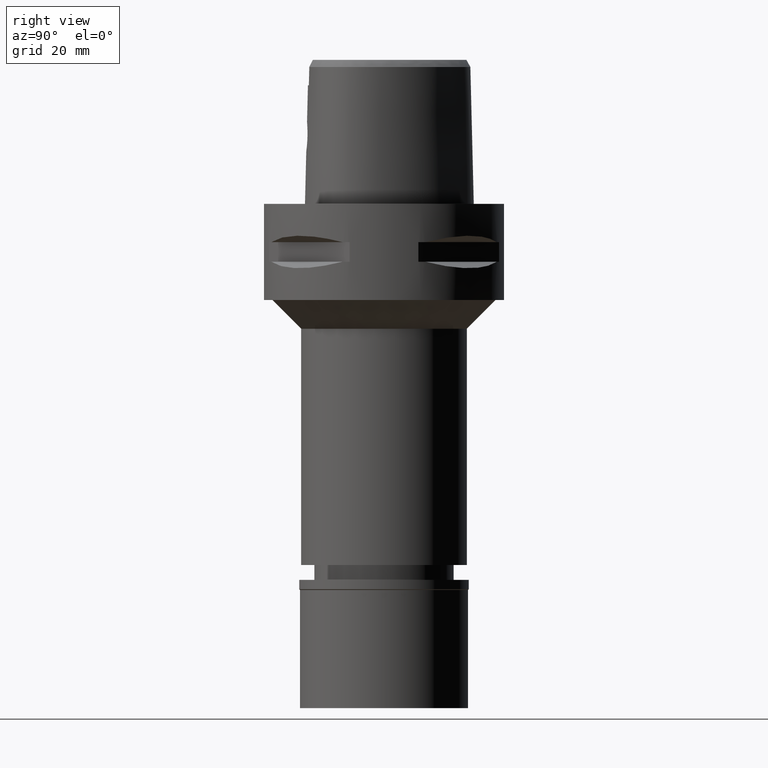
[diagram: clean part render]
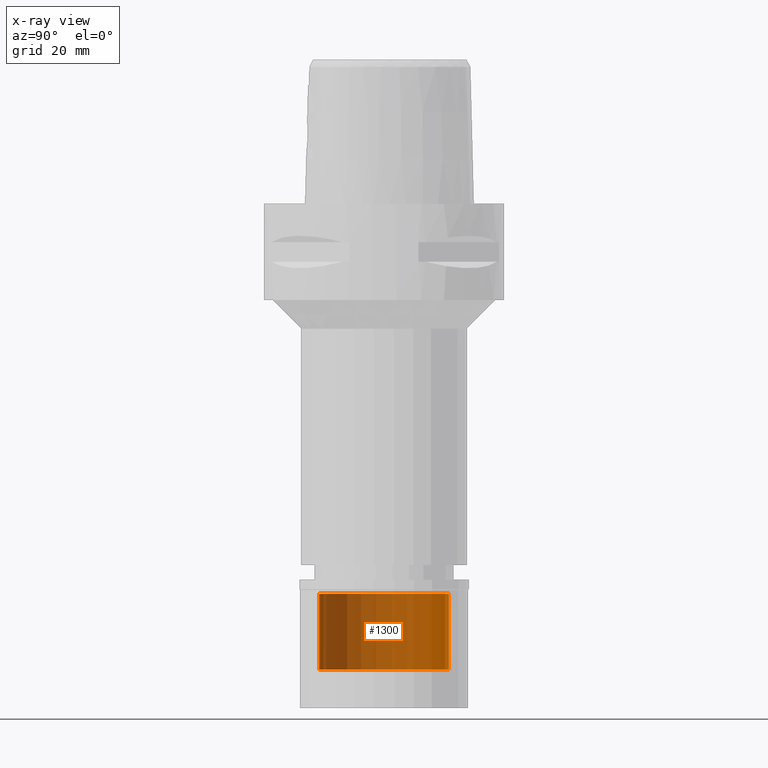
[diagram: x-ray — body ghosted, one internal face saturated and labeled with its STEP entity id]
A machine part, right view, then the same camera in x-ray: the body is ghosted and one INTERNAL B-rep face — a face not visible from any outside direction — is saturated and labeled: STEP entity #1300.
In plain terms, the highlighted cylindrical surface (partial cylindrical patch) has radius 13.5 mm, axis along (0, 0, -1).
Its self-contained STEP definition (entity closure, byte-faithful):
#17 = CIRCLE ( 'NONE', #1582, 13.50000000000000000 ) ;
#298 = EDGE_CURVE ( 'NONE', #1265, #3731, #1458, .T. ) ;
#465 = AXIS2_PLACEMENT_3D ( 'NONE', #1057, #2549, #1122 ) ;
#593 = EDGE_LOOP ( 'NONE', ( #3685, #922, #3924, #3531 ) ) ;
#668 = LINE ( 'NONE', #1778, #2436 ) ;
#779 = VECTOR ( 'NONE', #2580, 1000.000000000000000 ) ;
#783 = CARTESIAN_POINT ( 'NONE',  ( 0.0000000000000000000, -13.50000000000000000, -18.70000000000000284 ) ) ;
#922 = ORIENTED_EDGE ( 'NONE', *, *, #2034, .F. ) ;
#924 = EDGE_CURVE ( 'NONE', #3731, #2579, #17, .T. ) ;
#969 = VERTEX_POINT ( 'NONE', #783 ) ;
#1057 = CARTESIAN_POINT ( 'NONE',  ( 0.0000000000000000000, 0.0000000000000000000, 0.0000000000000000000 ) ) ;
#1122 = DIRECTION ( 'NONE',  ( 0.0000000000000000000, -1.000000000000000000, 0.0000000000000000000 ) ) ;
#1164 = EDGE_CURVE ( 'NONE', #969, #1265, #1255, .T. ) ;
#1187 = CARTESIAN_POINT ( 'NONE',  ( 0.0000000000000000000, 0.0000000000000000000, -2.899999999999999911 ) ) ;
#1255 = CIRCLE ( 'NONE', #4782, 13.50000000000000000 ) ;
#1265 = VERTEX_POINT ( 'NONE', #3206 ) ;
#1300 = ADVANCED_FACE ( 'NONE', ( #4510 ), #4486, .F. ) ;
#1458 = LINE ( 'NONE', #2960, #779 ) ;
#1582 = AXIS2_PLACEMENT_3D ( 'NONE', #1187, #2313, #4815 ) ;
#1778 = CARTESIAN_POINT ( 'NONE',  ( 0.0000000000000000000, -13.50000000000000000, -18.70000000000000284 ) ) ;
#2034 = EDGE_CURVE ( 'NONE', #969, #2579, #668, .T. ) ;
#2280 = DIRECTION ( 'NONE',  ( 0.0000000000000000000, 0.0000000000000000000, -1.000000000000000000 ) ) ;
#2313 = DIRECTION ( 'NONE',  ( 0.0000000000000000000, 0.0000000000000000000, 1.000000000000000000 ) ) ;
#2436 = VECTOR ( 'NONE', #3283, 1000.000000000000000 ) ;
#2549 = DIRECTION ( 'NONE',  ( 0.0000000000000000000, 0.0000000000000000000, -1.000000000000000000 ) ) ;
#2579 = VERTEX_POINT ( 'NONE', #3141 ) ;
#2580 = DIRECTION ( 'NONE',  ( 0.0000000000000000000, 0.0000000000000000000, 1.000000000000000000 ) ) ;
#2960 = CARTESIAN_POINT ( 'NONE',  ( 0.0000000000000000000, 13.50000000000000000, -18.70000000000000284 ) ) ;
#3098 = CARTESIAN_POINT ( 'NONE',  ( 0.0000000000000000000, 13.50000000000000000, -2.899999999999999911 ) ) ;
#3141 = CARTESIAN_POINT ( 'NONE',  ( 0.0000000000000000000, -13.50000000000000000, -2.899999999999999911 ) ) ;
#3206 = CARTESIAN_POINT ( 'NONE',  ( 0.0000000000000000000, 13.50000000000000000, -18.70000000000000284 ) ) ;
#3283 = DIRECTION ( 'NONE',  ( 0.0000000000000000000, 0.0000000000000000000, 1.000000000000000000 ) ) ;
#3369 = CARTESIAN_POINT ( 'NONE',  ( 0.0000000000000000000, 0.0000000000000000000, -18.70000000000000284 ) ) ;
#3531 = ORIENTED_EDGE ( 'NONE', *, *, #298, .T. ) ;
#3685 = ORIENTED_EDGE ( 'NONE', *, *, #924, .T. ) ;
#3731 = VERTEX_POINT ( 'NONE', #3098 ) ;
#3924 = ORIENTED_EDGE ( 'NONE', *, *, #1164, .T. ) ;
#4486 = CYLINDRICAL_SURFACE ( 'NONE', #465, 13.50000000000000000 ) ;
#4494 = DIRECTION ( 'NONE',  ( 0.0000000000000000000, -1.000000000000000000, 0.0000000000000000000 ) ) ;
#4510 = FACE_OUTER_BOUND ( 'NONE', #593, .T. ) ;
#4782 = AXIS2_PLACEMENT_3D ( 'NONE', #3369, #2280, #4494 ) ;
#4815 = DIRECTION ( 'NONE',  ( 0.0000000000000000000, 1.000000000000000000, 0.0000000000000000000 ) ) ;